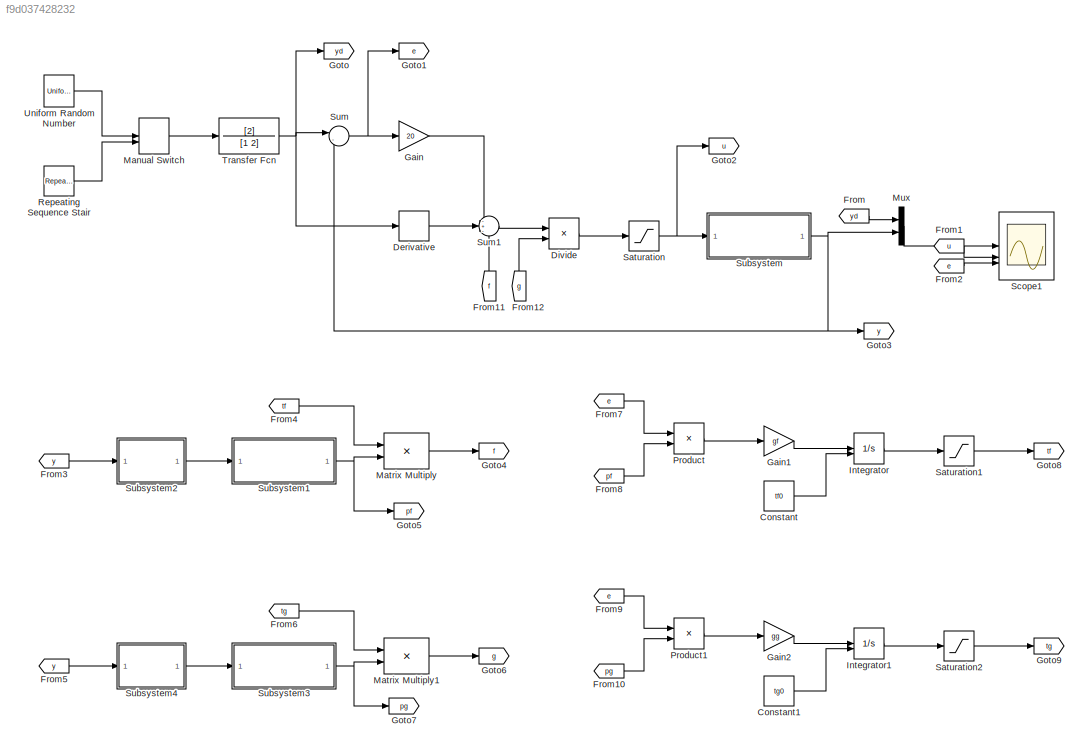
MODEL slx_f9d037428232
KIND model
CONFIG AbsTol = auto
CONFIG EnableMultiTasking = off
CONFIG FixedStep = auto
CONFIG MaxStep = auto
CONFIG MinStep = auto
CONFIG RelTol = 1e-3
CONFIG SampleTimeConstraint = Unconstrained
CONFIG SolverName = VariableStepAuto
CONFIG StartTime = 0.0
CONFIG StopTime = 100
BLOCK [Constant] Constant
  Value = tf0
BLOCK [Constant] Constant1
  Value = tg0
BLOCK [Derivative] Derivative
BLOCK [Product] Divide
  Inputs = */
BLOCK [From] From
  GotoTag = yd
BLOCK [From] From1
  GotoTag = u
BLOCK [From] From10
  GotoTag = pg
BLOCK [From] From11
  GotoTag = f
  NameLocation = right
BLOCK [From] From12
  GotoTag = g
  NameLocation = right
BLOCK [From] From2
  GotoTag = e
BLOCK [From] From3
  GotoTag = y
BLOCK [From] From4
  GotoTag = tf
BLOCK [From] From5
  GotoTag = y
BLOCK [From] From6
  GotoTag = tg
BLOCK [From] From7
  GotoTag = e
BLOCK [From] From8
  GotoTag = pf
BLOCK [From] From9
  GotoTag = e
BLOCK [Gain] Gain
  Gain = 20
BLOCK [Gain] Gain1
  Gain = gf
BLOCK [Gain] Gain2
  Gain = gg
BLOCK [Goto] Goto
  GotoTag = yd
BLOCK [Goto] Goto1
  GotoTag = e
BLOCK [Goto] Goto2
  GotoTag = u
BLOCK [Goto] Goto3
  GotoTag = y
BLOCK [Goto] Goto4
  GotoTag = f
BLOCK [Goto] Goto5
  GotoTag = pf
BLOCK [Goto] Goto6
  GotoTag = g
BLOCK [Goto] Goto7
  GotoTag = pg
BLOCK [Goto] Goto8
  GotoTag = tf
BLOCK [Goto] Goto9
  GotoTag = tg
BLOCK [Integrator] Integrator
  InitialConditionSource = external
BLOCK [Integrator] Integrator1
  InitialConditionSource = external
BLOCK [ManualSwitch] Manual Switch
BLOCK [Product] Matrix Multiply
  Multiplication = Matrix(*)
BLOCK [Product] Matrix Multiply1
  Multiplication = Matrix(*)
BLOCK [Mux] Mux
  DisplayOption = bar
  Inputs = 2
BLOCK [Product] Product
BLOCK [Product] Product1
BLOCK [Reference] Repeating Sequence Stair  REF=simulink/Sources/Repeating
Sequence
Stair
  SourceBlock = simulink/Sources/Repeating\nSequence\nStair
  SourceType = Repeating Sequence Stair
BLOCK [Saturate] Saturation
  LowerLimit = -10
  UpperLimit = 10
BLOCK [Saturate] Saturation1
  LowerLimit = -30
  UpperLimit = 30
BLOCK [Saturate] Saturation2
  LowerLimit = 0.1
  UpperLimit = 15
BLOCK [Scope] Scope1
  Floating = off
  NumInputPorts = 3
  ScopeSpecificationString = Simulink.scopes.TimeScopeBlockCfg('CurrentConfiguration', extmgr.ConfigurationSet(extmgr.Configuration('Core','General UI',true),extmgr.Configuration('Core','Source UI',true),extmgr.Configuration('Sources','WiredSimulink',true),extmgr.Configuration('Visuals','Time Domain',true,'SerializedDisplays',{struct('MinYLimReal','-7.36836','MaxYLimReal','66.3152','YLabelReal','','MinYLimMag','0.00000','MaxY...<+2953ch>
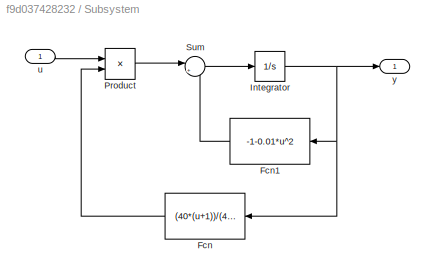
BLOCK [SubSystem] Subsystem
BLOCK [Fcn] Subsystem/Fcn
  Expr = (40*(u+1))/(40+u)
  NameLocation = top
BLOCK [Fcn] Subsystem/Fcn1
  Expr = -1-0.01*u^2
  NameLocation = top
BLOCK [Integrator] Subsystem/Integrator
BLOCK [Product] Subsystem/Product
BLOCK [Sum] Subsystem/Sum
  Inputs = |++
BLOCK [Inport] Subsystem/u
BLOCK [Outport] Subsystem/y
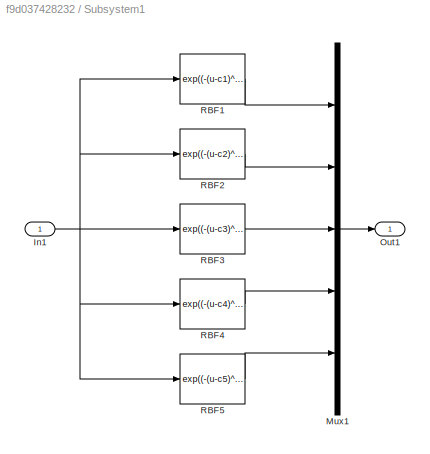
BLOCK [SubSystem] Subsystem1
BLOCK [Inport] Subsystem1/In1
BLOCK [Mux] Subsystem1/Mux1
  DisplayOption = bar
  Inputs = 5
BLOCK [Outport] Subsystem1/Out1
BLOCK [Fcn] Subsystem1/RBF1
  Expr = exp((-(u-c1)^2)/(s1^2))
BLOCK [Fcn] Subsystem1/RBF2
  Expr = exp((-(u-c2)^2)/(s2^2))
BLOCK [Fcn] Subsystem1/RBF3
  Expr = exp((-(u-c3)^2)/(s3^2))
BLOCK [Fcn] Subsystem1/RBF4
  Expr = exp((-(u-c4)^2)/(s4^2))
BLOCK [Fcn] Subsystem1/RBF5
  Expr = exp((-(u-c5)^2)/(s5^2))
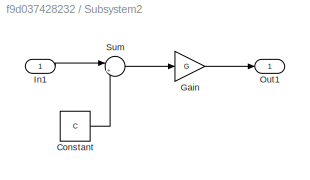
BLOCK [SubSystem] Subsystem2
BLOCK [Constant] Subsystem2/Constant
  Value = C
BLOCK [Gain] Subsystem2/Gain
  Gain = G
BLOCK [Inport] Subsystem2/In1
BLOCK [Outport] Subsystem2/Out1
BLOCK [Sum] Subsystem2/Sum
  Inputs = |++
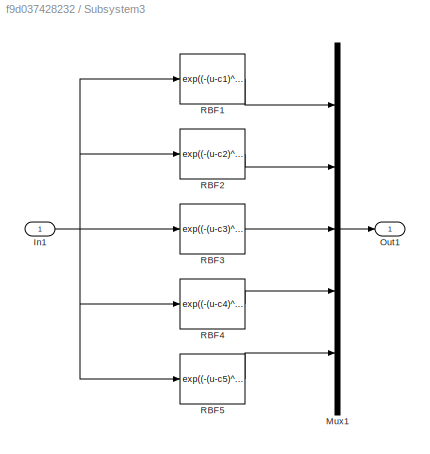
BLOCK [SubSystem] Subsystem3
BLOCK [Inport] Subsystem3/In1
BLOCK [Mux] Subsystem3/Mux1
  DisplayOption = bar
  Inputs = 5
BLOCK [Outport] Subsystem3/Out1
BLOCK [Fcn] Subsystem3/RBF1
  Expr = exp((-(u-c1)^2)/(s1^2))
BLOCK [Fcn] Subsystem3/RBF2
  Expr = exp((-(u-c2)^2)/(s2^2))
BLOCK [Fcn] Subsystem3/RBF3
  Expr = exp((-(u-c3)^2)/(s3^2))
BLOCK [Fcn] Subsystem3/RBF4
  Expr = exp((-(u-c4)^2)/(s4^2))
BLOCK [Fcn] Subsystem3/RBF5
  Expr = exp((-(u-c5)^2)/(s5^2))
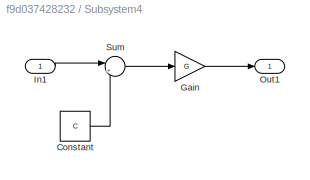
BLOCK [SubSystem] Subsystem4
BLOCK [Constant] Subsystem4/Constant
  Value = C
BLOCK [Gain] Subsystem4/Gain
  Gain = G
BLOCK [Inport] Subsystem4/In1
BLOCK [Outport] Subsystem4/Out1
BLOCK [Sum] Subsystem4/Sum
  Inputs = |++
BLOCK [Sum] Sum
  Inputs = |-+
BLOCK [Sum] Sum1
  Inputs = -+-
BLOCK [TransferFcn] Transfer Fcn
  Denominator = [1 2]
  Numerator = [2]
BLOCK [UniformRandomNumber] Uniform Random Number
  Maximum = 60
  Minimum = 20
  SampleTime = 10
LINE Constant1:1 -> Integrator1:2
LINE Constant:1 -> Integrator:2
LINE Derivative:1 -> Sum1:2
LINE Divide:1 -> Saturation:1
LINE From10:1 -> Product1:2
LINE From11:1 -> Sum1:3
LINE From12:1 -> Divide:2
LINE From1:1 -> Scope1:2
LINE From2:1 -> Scope1:3
LINE From3:1 -> Subsystem2:1
LINE From4:1 -> Matrix Multiply:1
LINE From5:1 -> Subsystem4:1
LINE From6:1 -> Matrix Multiply1:1
LINE From7:1 -> Product:1
LINE From8:1 -> Product:2
LINE From9:1 -> Product1:1
LINE From:1 -> Mux:1
LINE Gain1:1 -> Integrator:1
LINE Gain2:1 -> Integrator1:1
LINE Gain:1 -> Sum1:1
LINE Integrator1:1 -> Saturation2:1
LINE Integrator:1 -> Saturation1:1
LINE Manual Switch:1 -> Transfer Fcn:1
LINE Matrix Multiply1:1 -> Goto6:1
LINE Matrix Multiply:1 -> Goto4:1
LINE Mux:1 -> Scope1:1
LINE Product1:1 -> Gain2:1
LINE Product:1 -> Gain1:1
LINE Repeating Sequence Stair:1 -> Manual Switch:2
LINE Saturation1:1 -> Goto8:1
LINE Saturation2:1 -> Goto9:1
NET Saturation:1 -> Goto2:1, Subsystem:1
LINE Subsystem/Fcn1:1 -> Subsystem/Sum:2
LINE Subsystem/Fcn:1 -> Subsystem/Product:2
NET Subsystem/Integrator:1 -> Subsystem/Fcn1:1, Subsystem/Fcn:1, Subsystem/y:1
LINE Subsystem/Product:1 -> Subsystem/Sum:1
LINE Subsystem/Sum:1 -> Subsystem/Integrator:1
LINE Subsystem/u:1 -> Subsystem/Product:1
NET Subsystem1/In1:1 -> Subsystem1/RBF1:1, Subsystem1/RBF2:1, Subsystem1/RBF3:1, Subsystem1/RBF4:1, Subsystem1/RBF5:1
LINE Subsystem1/Mux1:1 -> Subsystem1/Out1:1
LINE Subsystem1/RBF1:1 -> Subsystem1/Mux1:1
LINE Subsystem1/RBF2:1 -> Subsystem1/Mux1:2
LINE Subsystem1/RBF3:1 -> Subsystem1/Mux1:3
LINE Subsystem1/RBF4:1 -> Subsystem1/Mux1:4
LINE Subsystem1/RBF5:1 -> Subsystem1/Mux1:5
NET Subsystem1:1 -> Goto5:1, Matrix Multiply:2
LINE Subsystem2/Constant:1 -> Subsystem2/Sum:2
LINE Subsystem2/Gain:1 -> Subsystem2/Out1:1
LINE Subsystem2/In1:1 -> Subsystem2/Sum:1
LINE Subsystem2/Sum:1 -> Subsystem2/Gain:1
LINE Subsystem2:1 -> Subsystem1:1
NET Subsystem3/In1:1 -> Subsystem3/RBF1:1, Subsystem3/RBF2:1, Subsystem3/RBF3:1, Subsystem3/RBF4:1, Subsystem3/RBF5:1
LINE Subsystem3/Mux1:1 -> Subsystem3/Out1:1
LINE Subsystem3/RBF1:1 -> Subsystem3/Mux1:1
LINE Subsystem3/RBF2:1 -> Subsystem3/Mux1:2
LINE Subsystem3/RBF3:1 -> Subsystem3/Mux1:3
LINE Subsystem3/RBF4:1 -> Subsystem3/Mux1:4
LINE Subsystem3/RBF5:1 -> Subsystem3/Mux1:5
NET Subsystem3:1 -> Goto7:1, Matrix Multiply1:2
LINE Subsystem4/Constant:1 -> Subsystem4/Sum:2
LINE Subsystem4/Gain:1 -> Subsystem4/Out1:1
LINE Subsystem4/In1:1 -> Subsystem4/Sum:1
LINE Subsystem4/Sum:1 -> Subsystem4/Gain:1
LINE Subsystem4:1 -> Subsystem3:1
NET Subsystem:1 -> Goto3:1, Mux:2, Sum:2
LINE Sum1:1 -> Divide:1
NET Sum:1 -> Gain:1, Goto1:1
NET Transfer Fcn:1 -> Derivative:1, Goto:1, Sum:1
LINE Uniform Random Number:1 -> Manual Switch:1
note: NET lines group one-source signal fan-out (src -> all destinations, sorted); 1:1 wires keep LINE
